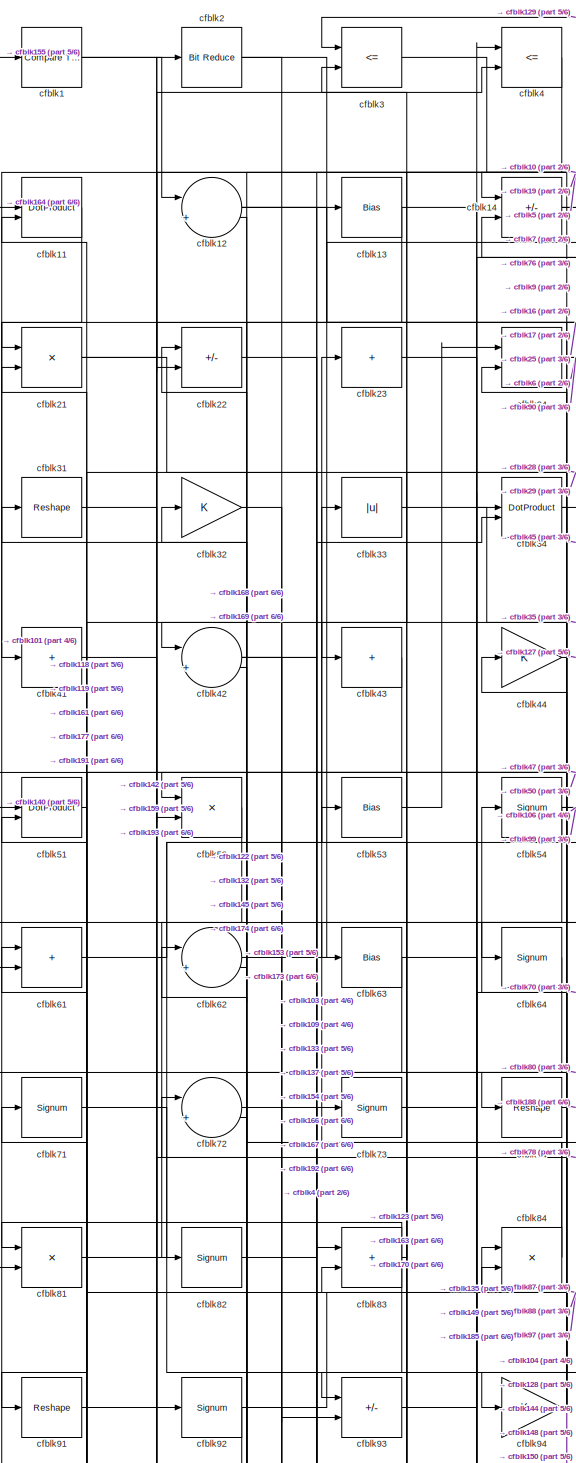
[diagram: root canvas - part 1/6, top left region]
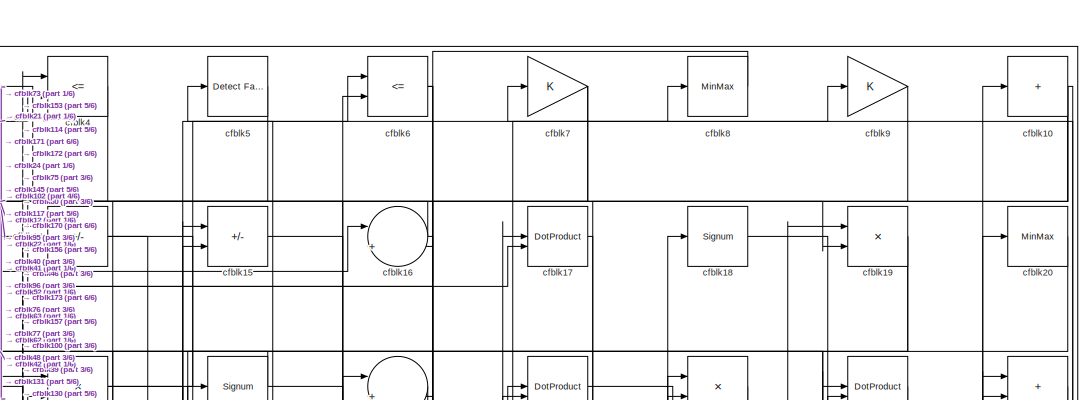
[diagram: root canvas - part 2/6, top center region]
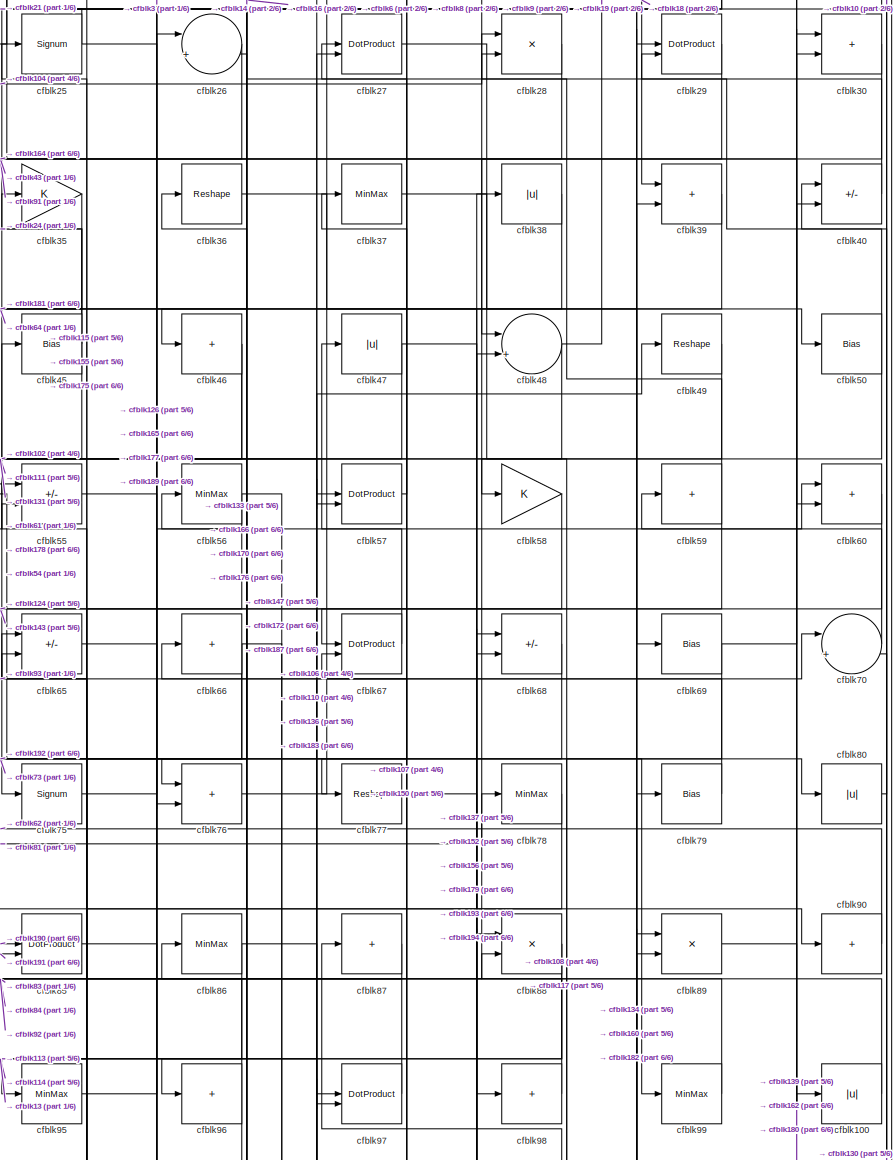
[diagram: root canvas - part 3/6, top right region]
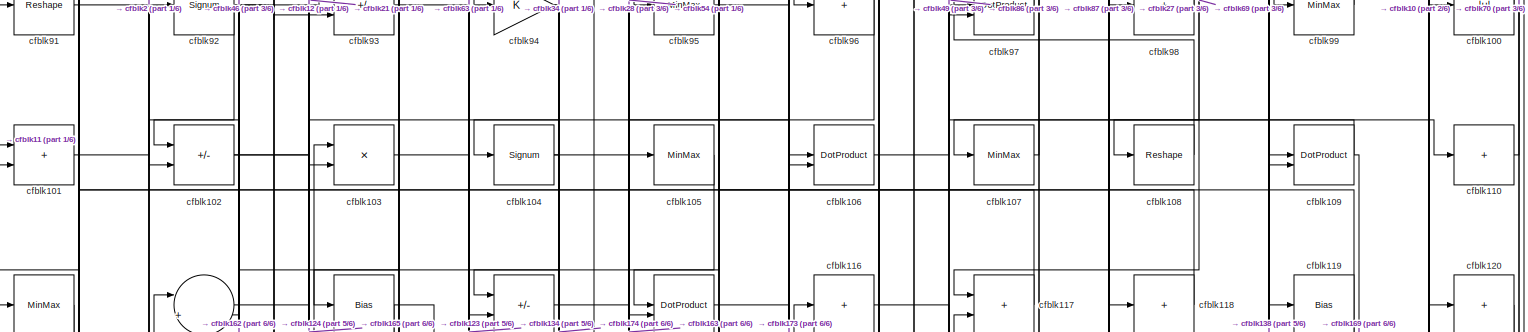
[diagram: root canvas - part 4/6, full width, middle band]
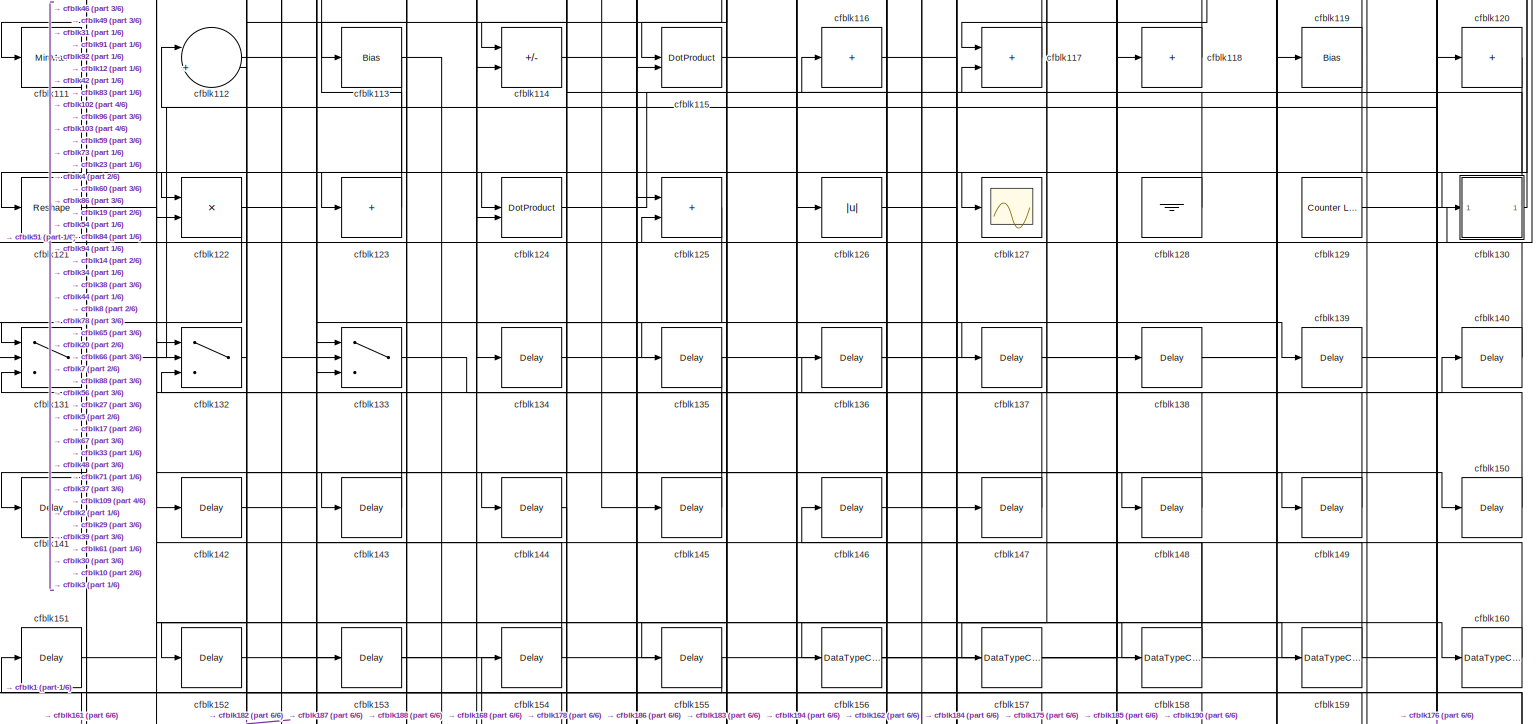
[diagram: root canvas - part 5/6, full width, bottom band]
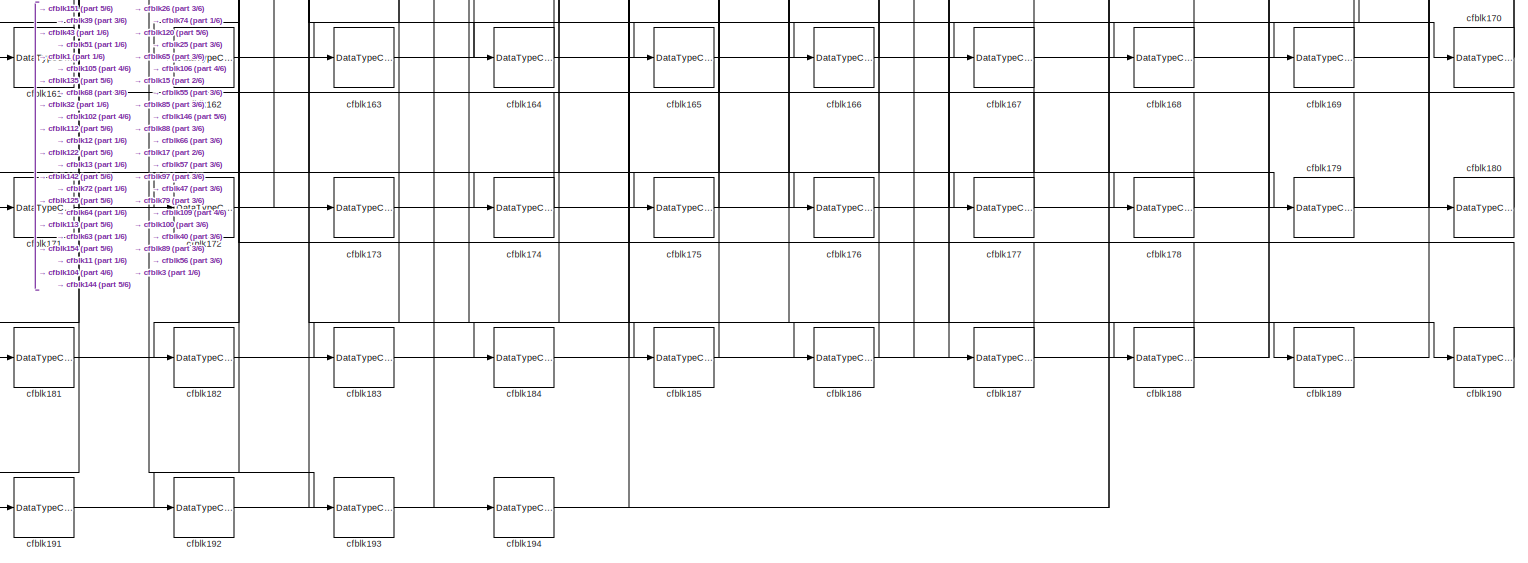
[diagram: root canvas - part 6/6, full width, bottom band]
MODEL slx_450418cd681a
KIND model
CONFIG AbsTol = auto
CONFIG EnableMultiTasking = off
CONFIG FixedStep = auto
CONFIG MaxStep = auto
CONFIG MinStep = auto
CONFIG RelTol = 1e-3
CONFIG SampleTimeConstraint = Unconstrained
CONFIG SolverName = VariableStepAuto
CONFIG StartTime = 0.0
CONFIG StopTime = 10.0
BLOCK [Reference] cfblk1  REF=hdlsllib/Logic and Bit
Operations/Compare
To Constant
  SourceBlock = hdlsllib/Logic and Bit\nOperations/Compare\nTo Constant
  SourceType = Compare To Constant
BLOCK [Sum] cfblk10
  IconShape = rectangular
  Inputs = +
BLOCK [Abs] cfblk100
  SaturateOnIntegerOverflow = off
BLOCK [Sum] cfblk101
  IconShape = rectangular
BLOCK [Sum] cfblk102
  IconShape = rectangular
  Inputs = +-
BLOCK [Product] cfblk103
  Inputs = */
  RndMeth = Zero
  SaturateOnIntegerOverflow = on
BLOCK [Signum] cfblk104
BLOCK [MinMax] cfblk105
BLOCK [DotProduct] cfblk106
  OutDataTypeStr = Inherit: Inherit via internal rule
BLOCK [MinMax] cfblk107
BLOCK [Reshape] cfblk108
BLOCK [DotProduct] cfblk109
  OutDataTypeStr = Inherit: Inherit via internal rule
BLOCK [DotProduct] cfblk11
  OutDataTypeStr = Inherit: Inherit via internal rule
BLOCK [Sum] cfblk110
  IconShape = rectangular
  Inputs = +
BLOCK [MinMax] cfblk111
BLOCK [Sum] cfblk112
  Inputs = |++
BLOCK [Bias] cfblk113
  Bias = 0.0
  SaturateOnIntegerOverflow = off
BLOCK [Sum] cfblk114
  IconShape = rectangular
  Inputs = +-
BLOCK [DotProduct] cfblk115
  OutDataTypeStr = Inherit: Inherit via internal rule
BLOCK [Sum] cfblk116
  IconShape = rectangular
  Inputs = +
BLOCK [Sum] cfblk117
  IconShape = rectangular
BLOCK [Sum] cfblk118
  IconShape = rectangular
  Inputs = +
BLOCK [Bias] cfblk119
  Bias = 0.0
  SaturateOnIntegerOverflow = off
BLOCK [Sum] cfblk12
  Inputs = |++
BLOCK [Sum] cfblk120
  IconShape = rectangular
  Inputs = +
BLOCK [Reshape] cfblk121
BLOCK [Product] cfblk122
  Inputs = */
  RndMeth = Zero
  SaturateOnIntegerOverflow = on
BLOCK [Sum] cfblk123
  IconShape = rectangular
  Inputs = +
BLOCK [DotProduct] cfblk124
  OutDataTypeStr = Inherit: Inherit via internal rule
BLOCK [Sum] cfblk125
  IconShape = rectangular
BLOCK [Abs] cfblk126
  SaturateOnIntegerOverflow = off
BLOCK [Scope] cfblk127
  Floating = off
  NumInputPorts = 1
  ScopeSpecificationString = Simulink.scopes.TimeScopeBlockCfg('CurrentConfiguration', extmgr.ConfigurationSet(extmgr.Configuration('Core','General UI',true),extmgr.Configuration('Core','Source UI',true),extmgr.Configuration('Sources','WiredSimulink',true,'DataLoggingVariableName','ScopeData2','DataLoggingSaveFormat','Array','DataLoggingLimitDataPoints',true,'DataLoggingDecimation','1'),extmgr.Configuration('Visuals','Time Do...<+868ch>
BLOCK [Ground] cfblk128
BLOCK [Reference] cfblk129  REF=hdlsllib/Sources/Counter
Limited
  SourceBlock = hdlsllib/Sources/Counter\nLimited
  SourceType = Counter Limited
BLOCK [Bias] cfblk13
  Bias = 0.0
  SaturateOnIntegerOverflow = off
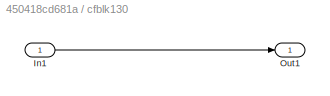
BLOCK [SubSystem] cfblk130
  LibrarySourceBlock = hdlsllib/Ports &\nSubsystems/Subsystem
BLOCK [Inport] cfblk130/In1
BLOCK [Outport] cfblk130/Out1
BLOCK [Switch] cfblk131
  InputSameDT = off
  SaturateOnIntegerOverflow = off
BLOCK [Switch] cfblk132
  InputSameDT = off
  SaturateOnIntegerOverflow = off
BLOCK [Switch] cfblk133
  InputSameDT = off
  SaturateOnIntegerOverflow = off
BLOCK [Delay] cfblk134
  InputPortMap = u0
  SampleTime = 1
BLOCK [Delay] cfblk135
  InputPortMap = u0
  SampleTime = 1
BLOCK [Delay] cfblk136
  InputPortMap = u0
  SampleTime = 1
BLOCK [Delay] cfblk137
  InputPortMap = u0
  SampleTime = 1
BLOCK [Delay] cfblk138
  InputPortMap = u0
  SampleTime = 1
BLOCK [Delay] cfblk139
  InputPortMap = u0
  SampleTime = 1
BLOCK [Sum] cfblk14
  IconShape = rectangular
  Inputs = +-
BLOCK [Delay] cfblk140
  InputPortMap = u0
  SampleTime = 1
BLOCK [Delay] cfblk141
  InputPortMap = u0
  SampleTime = 1
BLOCK [Delay] cfblk142
  InputPortMap = u0
  SampleTime = 1
BLOCK [Delay] cfblk143
  InputPortMap = u0
  SampleTime = 1
BLOCK [Delay] cfblk144
  InputPortMap = u0
  SampleTime = 1
BLOCK [Delay] cfblk145
  InputPortMap = u0
  SampleTime = 1
BLOCK [Delay] cfblk146
  InputPortMap = u0
  SampleTime = 1
BLOCK [Delay] cfblk147
  InputPortMap = u0
  SampleTime = 1
BLOCK [Delay] cfblk148
  InputPortMap = u0
  SampleTime = 1
BLOCK [Delay] cfblk149
  InputPortMap = u0
  SampleTime = 1
BLOCK [Sum] cfblk15
  IconShape = rectangular
  Inputs = +-
BLOCK [Delay] cfblk150
  InputPortMap = u0
  SampleTime = 1
BLOCK [Delay] cfblk151
  InputPortMap = u0
  SampleTime = 1
BLOCK [Delay] cfblk152
  InputPortMap = u0
  SampleTime = 1
BLOCK [Delay] cfblk153
  InputPortMap = u0
  SampleTime = 1
BLOCK [Delay] cfblk154
  InputPortMap = u0
  SampleTime = 1
BLOCK [Delay] cfblk155
  InputPortMap = u0
  SampleTime = 1
BLOCK [DataTypeConversion] cfblk156
  RndMeth = Floor
  SaturateOnIntegerOverflow = off
BLOCK [DataTypeConversion] cfblk157
  OutDataTypeStr = uint8
  RndMeth = Floor
  SaturateOnIntegerOverflow = off
BLOCK [DataTypeConversion] cfblk158
  RndMeth = Floor
  SaturateOnIntegerOverflow = off
BLOCK [DataTypeConversion] cfblk159
  OutDataTypeStr = uint8
  RndMeth = Floor
  SaturateOnIntegerOverflow = off
BLOCK [Sum] cfblk16
  Inputs = |++
BLOCK [DataTypeConversion] cfblk160
  OutDataTypeStr = uint8
  RndMeth = Floor
  SaturateOnIntegerOverflow = off
BLOCK [DataTypeConversion] cfblk161
  OutDataTypeStr = uint8
  RndMeth = Floor
  SaturateOnIntegerOverflow = off
BLOCK [DataTypeConversion] cfblk162
  RndMeth = Floor
  SaturateOnIntegerOverflow = off
BLOCK [DataTypeConversion] cfblk163
  OutDataTypeStr = uint8
  RndMeth = Floor
  SaturateOnIntegerOverflow = off
BLOCK [DataTypeConversion] cfblk164
  OutDataTypeStr = uint8
  RndMeth = Floor
  SaturateOnIntegerOverflow = off
BLOCK [DataTypeConversion] cfblk165
  OutDataTypeStr = uint8
  RndMeth = Floor
  SaturateOnIntegerOverflow = off
BLOCK [DataTypeConversion] cfblk166
  OutDataTypeStr = uint8
  RndMeth = Floor
  SaturateOnIntegerOverflow = off
BLOCK [DataTypeConversion] cfblk167
  RndMeth = Floor
  SaturateOnIntegerOverflow = off
BLOCK [DataTypeConversion] cfblk168
  OutDataTypeStr = uint8
  RndMeth = Floor
  SaturateOnIntegerOverflow = off
BLOCK [DataTypeConversion] cfblk169
  OutDataTypeStr = uint8
  RndMeth = Floor
  SaturateOnIntegerOverflow = off
BLOCK [DotProduct] cfblk17
  OutDataTypeStr = Inherit: Inherit via internal rule
BLOCK [DataTypeConversion] cfblk170
  RndMeth = Floor
  SaturateOnIntegerOverflow = off
BLOCK [DataTypeConversion] cfblk171
  OutDataTypeStr = uint8
  RndMeth = Floor
  SaturateOnIntegerOverflow = off
BLOCK [DataTypeConversion] cfblk172
  OutDataTypeStr = uint8
  RndMeth = Floor
  SaturateOnIntegerOverflow = off
BLOCK [DataTypeConversion] cfblk173
  RndMeth = Floor
  SaturateOnIntegerOverflow = off
BLOCK [DataTypeConversion] cfblk174
  OutDataTypeStr = uint8
  RndMeth = Floor
  SaturateOnIntegerOverflow = off
BLOCK [DataTypeConversion] cfblk175
  RndMeth = Floor
  SaturateOnIntegerOverflow = off
BLOCK [DataTypeConversion] cfblk176
  OutDataTypeStr = uint8
  RndMeth = Floor
  SaturateOnIntegerOverflow = off
BLOCK [DataTypeConversion] cfblk177
  OutDataTypeStr = uint8
  RndMeth = Floor
  SaturateOnIntegerOverflow = off
BLOCK [DataTypeConversion] cfblk178
  OutDataTypeStr = uint8
  RndMeth = Floor
  SaturateOnIntegerOverflow = off
BLOCK [DataTypeConversion] cfblk179
  OutDataTypeStr = uint8
  RndMeth = Floor
  SaturateOnIntegerOverflow = off
BLOCK [Signum] cfblk18
BLOCK [DataTypeConversion] cfblk180
  OutDataTypeStr = uint8
  RndMeth = Floor
  SaturateOnIntegerOverflow = off
BLOCK [DataTypeConversion] cfblk181
  OutDataTypeStr = uint8
  RndMeth = Floor
  SaturateOnIntegerOverflow = off
BLOCK [DataTypeConversion] cfblk182
  OutDataTypeStr = uint8
  RndMeth = Floor
  SaturateOnIntegerOverflow = off
BLOCK [DataTypeConversion] cfblk183
  OutDataTypeStr = uint8
  RndMeth = Floor
  SaturateOnIntegerOverflow = off
BLOCK [DataTypeConversion] cfblk184
  OutDataTypeStr = uint8
  RndMeth = Floor
  SaturateOnIntegerOverflow = off
BLOCK [DataTypeConversion] cfblk185
  OutDataTypeStr = uint8
  RndMeth = Floor
  SaturateOnIntegerOverflow = off
BLOCK [DataTypeConversion] cfblk186
  OutDataTypeStr = uint8
  RndMeth = Floor
  SaturateOnIntegerOverflow = off
BLOCK [DataTypeConversion] cfblk187
  OutDataTypeStr = uint8
  RndMeth = Floor
  SaturateOnIntegerOverflow = off
BLOCK [DataTypeConversion] cfblk188
  OutDataTypeStr = uint8
  RndMeth = Floor
  SaturateOnIntegerOverflow = off
BLOCK [DataTypeConversion] cfblk189
  OutDataTypeStr = uint8
  RndMeth = Floor
  SaturateOnIntegerOverflow = off
BLOCK [Product] cfblk19
  Inputs = */
  RndMeth = Zero
  SaturateOnIntegerOverflow = on
BLOCK [DataTypeConversion] cfblk190
  OutDataTypeStr = uint8
  RndMeth = Floor
  SaturateOnIntegerOverflow = off
BLOCK [DataTypeConversion] cfblk191
  OutDataTypeStr = uint8
  RndMeth = Floor
  SaturateOnIntegerOverflow = off
BLOCK [DataTypeConversion] cfblk192
  OutDataTypeStr = uint8
  RndMeth = Floor
  SaturateOnIntegerOverflow = off
BLOCK [DataTypeConversion] cfblk193
  OutDataTypeStr = uint8
  RndMeth = Floor
  SaturateOnIntegerOverflow = off
BLOCK [DataTypeConversion] cfblk194
  OutDataTypeStr = uint8
  RndMeth = Floor
  SaturateOnIntegerOverflow = off
BLOCK [Reference] cfblk2  REF=hdlsllib/Logic and Bit
Operations/Bit Reduce
  SourceBlock = hdlsllib/Logic and Bit\nOperations/Bit Reduce
  SourceType = Bit Reduce
BLOCK [MinMax] cfblk20
BLOCK [Product] cfblk21
  Inputs = */
  RndMeth = Zero
  SaturateOnIntegerOverflow = on
BLOCK [Sum] cfblk22
  IconShape = rectangular
  Inputs = +-
BLOCK [Sum] cfblk23
  IconShape = rectangular
  Inputs = +
BLOCK [Product] cfblk24
  Inputs = */
  RndMeth = Zero
  SaturateOnIntegerOverflow = on
BLOCK [Signum] cfblk25
BLOCK [Sum] cfblk26
  Inputs = |++
BLOCK [DotProduct] cfblk27
  OutDataTypeStr = Inherit: Inherit via internal rule
BLOCK [Product] cfblk28
  Inputs = */
  RndMeth = Zero
  SaturateOnIntegerOverflow = on
BLOCK [DotProduct] cfblk29
  OutDataTypeStr = Inherit: Inherit via internal rule
BLOCK [RelationalOperator] cfblk3
  InputSameDT = off
  Operator = <=
  OutDataTypeStr = boolean
BLOCK [Sum] cfblk30
  IconShape = rectangular
BLOCK [Reshape] cfblk31
BLOCK [Gain] cfblk32
BLOCK [Abs] cfblk33
  SaturateOnIntegerOverflow = off
BLOCK [DotProduct] cfblk34
  OutDataTypeStr = Inherit: Inherit via internal rule
BLOCK [Gain] cfblk35
BLOCK [Reshape] cfblk36
BLOCK [MinMax] cfblk37
BLOCK [Abs] cfblk38
  SaturateOnIntegerOverflow = off
BLOCK [Sum] cfblk39
  IconShape = rectangular
BLOCK [RelationalOperator] cfblk4
  InputSameDT = off
  Operator = <=
  OutDataTypeStr = boolean
BLOCK [Sum] cfblk40
  IconShape = rectangular
  Inputs = +-
BLOCK [Sum] cfblk41
  IconShape = rectangular
  Inputs = +
BLOCK [Sum] cfblk42
  Inputs = |++
BLOCK [Sum] cfblk43
  IconShape = rectangular
  Inputs = +
BLOCK [Gain] cfblk44
BLOCK [Bias] cfblk45
  Bias = 0.0
  SaturateOnIntegerOverflow = off
BLOCK [Sum] cfblk46
  IconShape = rectangular
  Inputs = +
BLOCK [Abs] cfblk47
  SaturateOnIntegerOverflow = off
BLOCK [Sum] cfblk48
  Inputs = |++
BLOCK [Reshape] cfblk49
BLOCK [Reference] cfblk5  REF=hdlsllib/Logic and Bit
Operations/Detect Fall
Negative
  SourceBlock = hdlsllib/Logic and Bit\nOperations/Detect Fall\nNegative
  SourceType = Detect Fall Negative
BLOCK [Bias] cfblk50
  Bias = 0.0
  SaturateOnIntegerOverflow = off
BLOCK [DotProduct] cfblk51
  OutDataTypeStr = Inherit: Inherit via internal rule
BLOCK [Product] cfblk52
  Inputs = */
  RndMeth = Zero
  SaturateOnIntegerOverflow = on
BLOCK [Bias] cfblk53
  Bias = 0.0
  SaturateOnIntegerOverflow = off
BLOCK [Signum] cfblk54
BLOCK [Sum] cfblk55
  IconShape = rectangular
  Inputs = +-
BLOCK [MinMax] cfblk56
BLOCK [DotProduct] cfblk57
  OutDataTypeStr = Inherit: Inherit via internal rule
BLOCK [Gain] cfblk58
BLOCK [Sum] cfblk59
  IconShape = rectangular
  Inputs = +
BLOCK [RelationalOperator] cfblk6
  InputSameDT = off
  Operator = <=
  OutDataTypeStr = boolean
BLOCK [Sum] cfblk60
  IconShape = rectangular
BLOCK [Sum] cfblk61
  IconShape = rectangular
BLOCK [Sum] cfblk62
  Inputs = |++
BLOCK [Bias] cfblk63
  Bias = 0.0
  SaturateOnIntegerOverflow = off
BLOCK [Signum] cfblk64
BLOCK [Sum] cfblk65
  IconShape = rectangular
  Inputs = +-
BLOCK [Sum] cfblk66
  IconShape = rectangular
  Inputs = +
BLOCK [DotProduct] cfblk67
  OutDataTypeStr = Inherit: Inherit via internal rule
BLOCK [Sum] cfblk68
  IconShape = rectangular
  Inputs = +-
BLOCK [Bias] cfblk69
  Bias = 0.0
  SaturateOnIntegerOverflow = off
BLOCK [Gain] cfblk7
BLOCK [Sum] cfblk70
  Inputs = |++
BLOCK [Signum] cfblk71
BLOCK [Sum] cfblk72
  Inputs = |++
BLOCK [Signum] cfblk73
BLOCK [Reshape] cfblk74
BLOCK [Signum] cfblk75
BLOCK [Sum] cfblk76
  IconShape = rectangular
BLOCK [Reshape] cfblk77
BLOCK [MinMax] cfblk78
BLOCK [Bias] cfblk79
  Bias = 0.0
  SaturateOnIntegerOverflow = off
BLOCK [MinMax] cfblk8
BLOCK [Abs] cfblk80
  SaturateOnIntegerOverflow = off
BLOCK [Product] cfblk81
  Inputs = */
  RndMeth = Zero
  SaturateOnIntegerOverflow = on
BLOCK [Signum] cfblk82
BLOCK [Sum] cfblk83
  IconShape = rectangular
BLOCK [Product] cfblk84
  Inputs = */
  RndMeth = Zero
  SaturateOnIntegerOverflow = on
BLOCK [DotProduct] cfblk85
  OutDataTypeStr = Inherit: Inherit via internal rule
BLOCK [MinMax] cfblk86
BLOCK [Sum] cfblk87
  IconShape = rectangular
  Inputs = +
BLOCK [Product] cfblk88
  Inputs = */
  RndMeth = Zero
  SaturateOnIntegerOverflow = on
BLOCK [Product] cfblk89
  Inputs = */
  RndMeth = Zero
  SaturateOnIntegerOverflow = on
BLOCK [Gain] cfblk9
BLOCK [Sum] cfblk90
  IconShape = rectangular
  Inputs = +
BLOCK [Reshape] cfblk91
BLOCK [Signum] cfblk92
BLOCK [Sum] cfblk93
  IconShape = rectangular
  Inputs = +-
BLOCK [Gain] cfblk94
BLOCK [MinMax] cfblk95
BLOCK [Sum] cfblk96
  IconShape = rectangular
  Inputs = +
BLOCK [DotProduct] cfblk97
  OutDataTypeStr = Inherit: Inherit via internal rule
BLOCK [Sum] cfblk98
  IconShape = rectangular
  Inputs = +
BLOCK [MinMax] cfblk99
LINE cfblk100:1 -> cfblk18:1
LINE cfblk101:1 -> cfblk2:1
NET cfblk102:1 -> cfblk124:1, cfblk165:1
LINE cfblk103:1 -> cfblk134:1
NET cfblk104:1 -> cfblk174:1, cfblk28:2
LINE cfblk105:1 -> cfblk162:1
LINE cfblk106:1 -> cfblk49:1
LINE cfblk107:1 -> cfblk27:1
LINE cfblk108:1 -> cfblk87:1
NET cfblk109:1 -> cfblk107:1, cfblk169:1
NET cfblk10:1 -> cfblk102:2, cfblk130:1, cfblk63:1, cfblk77:1
LINE cfblk110:1 -> cfblk70:2
LINE cfblk111:1 -> cfblk121:1
LINE cfblk112:1 -> cfblk186:1
NET cfblk113:1 -> cfblk152:1, cfblk194:1
LINE cfblk114:1 -> cfblk8:1
LINE cfblk115:1 -> cfblk139:1
LINE cfblk116:1 -> cfblk158:1
LINE cfblk117:1 -> cfblk5:1
LINE cfblk118:1 -> cfblk71:1
NET cfblk119:1 -> cfblk141:1, cfblk61:1
LINE cfblk11:1 -> cfblk101:1
LINE cfblk120:1 -> cfblk175:1
LINE cfblk121:1 -> cfblk148:1
NET cfblk122:1 -> cfblk131:2, cfblk168:1
LINE cfblk123:1 -> cfblk103:1
LINE cfblk124:1 -> cfblk117:2
LINE cfblk125:1 -> cfblk183:1
LINE cfblk126:1 -> cfblk149:1
LINE cfblk128:1 -> cfblk54:1
LINE cfblk129:1 -> cfblk3:1
NET cfblk12:1 -> cfblk109:1, cfblk166:1, cfblk19:2
LINE cfblk130/In1:1 -> cfblk130/Out1:1
NET cfblk130:1 -> cfblk66:1, cfblk7:1
LINE cfblk131:1 -> cfblk10:1
LINE cfblk132:1 -> cfblk42:2
LINE cfblk133:1 -> cfblk140:1
LINE cfblk134:1 -> cfblk39:2
LINE cfblk135:1 -> cfblk182:1
LINE cfblk136:1 -> cfblk27:2
LINE cfblk137:1 -> cfblk88:1
LINE cfblk138:1 -> cfblk109:2
LINE cfblk139:1 -> cfblk30:1
NET cfblk13:1 -> cfblk52:2, cfblk97:2
LINE cfblk140:1 -> cfblk51:1
LINE cfblk141:1 -> cfblk131:3
LINE cfblk142:1 -> cfblk178:1
LINE cfblk143:1 -> cfblk132:3
LINE cfblk144:1 -> cfblk184:1
LINE cfblk145:1 -> cfblk12:2
LINE cfblk146:1 -> cfblk190:1
LINE cfblk147:1 -> cfblk132:1
LINE cfblk148:1 -> cfblk84:2
LINE cfblk149:1 -> cfblk34:1
NET cfblk14:1 -> cfblk145:1, cfblk60:2
LINE cfblk150:1 -> cfblk67:2
LINE cfblk151:1 -> cfblk160:1
LINE cfblk152:1 -> cfblk48:2
LINE cfblk153:1 -> cfblk4:1
LINE cfblk154:1 -> cfblk83:1
LINE cfblk155:1 -> cfblk1:1
NET cfblk156:1 -> cfblk138:1, cfblk38:1
LINE cfblk157:1 -> cfblk20:1
NET cfblk158:1 -> cfblk132:2, cfblk136:1
LINE cfblk159:1 -> cfblk116:1
LINE cfblk15:1 -> cfblk170:1
LINE cfblk160:1 -> cfblk29:1
LINE cfblk161:1 -> cfblk151:1
NET cfblk162:1 -> cfblk154:1, cfblk40:2
LINE cfblk163:1 -> cfblk105:1
LINE cfblk164:1 -> cfblk11:1
LINE cfblk165:1 -> cfblk26:1
LINE cfblk166:1 -> cfblk26:2
NET cfblk167:1 -> cfblk11:2, cfblk171:1
LINE cfblk168:1 -> cfblk72:1
LINE cfblk169:1 -> cfblk72:2
NET cfblk16:1 -> cfblk14:1, cfblk96:1
NET cfblk170:1 -> cfblk3:2, cfblk56:1
LINE cfblk171:1 -> cfblk15:1
LINE cfblk172:1 -> cfblk15:2
NET cfblk173:1 -> cfblk106:1, cfblk17:1
LINE cfblk174:1 -> cfblk32:1
NET cfblk175:1 -> cfblk65:2, cfblk79:1, cfblk97:1
LINE cfblk176:1 -> cfblk120:1
LINE cfblk177:1 -> cfblk51:2
LINE cfblk178:1 -> cfblk55:1
LINE cfblk179:1 -> cfblk55:2
LINE cfblk17:1 -> cfblk157:1
LINE cfblk180:1 -> cfblk25:1
LINE cfblk181:1 -> cfblk89:1
LINE cfblk182:1 -> cfblk89:2
LINE cfblk183:1 -> cfblk57:1
LINE cfblk184:1 -> cfblk125:1
LINE cfblk185:1 -> cfblk125:2
LINE cfblk186:1 -> cfblk146:1
LINE cfblk187:1 -> cfblk112:1
LINE cfblk188:1 -> cfblk112:2
LINE cfblk189:1 -> cfblk100:1
LINE cfblk18:1 -> cfblk39:1
LINE cfblk190:1 -> cfblk85:1
LINE cfblk191:1 -> cfblk85:2
LINE cfblk192:1 -> cfblk13:1
LINE cfblk193:1 -> cfblk68:1
LINE cfblk194:1 -> cfblk68:2
NET cfblk19:1 -> cfblk114:1, cfblk42:1
NET cfblk1:1 -> cfblk12:1, cfblk193:1
LINE cfblk20:1 -> cfblk156:1
NET cfblk21:1 -> cfblk103:2, cfblk4:2
LINE cfblk22:1 -> cfblk74:1
LINE cfblk23:1 -> cfblk135:1
NET cfblk24:1 -> cfblk6:1, cfblk90:1
NET cfblk25:1 -> cfblk21:1, cfblk57:2
LINE cfblk26:1 -> cfblk164:1
LINE cfblk27:1 -> cfblk69:1
LINE cfblk28:1 -> cfblk91:1
LINE cfblk29:1 -> cfblk43:1
NET cfblk2:1 -> cfblk119:1, cfblk93:2
LINE cfblk30:1 -> cfblk48:1
LINE cfblk31:1 -> cfblk159:1
LINE cfblk32:1 -> cfblk173:1
LINE cfblk33:1 -> cfblk118:1
NET cfblk34:1 -> cfblk104:1, cfblk150:1
LINE cfblk35:1 -> cfblk64:1
LINE cfblk36:1 -> cfblk50:1
LINE cfblk37:1 -> cfblk117:1
LINE cfblk38:1 -> cfblk115:2
LINE cfblk39:1 -> cfblk181:1
LINE cfblk3:1 -> cfblk76:2
LINE cfblk40:1 -> cfblk14:2
LINE cfblk41:1 -> cfblk92:1
NET cfblk42:1 -> cfblk133:2, cfblk137:1, cfblk22:1, cfblk34:2
LINE cfblk43:1 -> cfblk161:1
LINE cfblk44:1 -> cfblk127:1
NET cfblk45:1 -> cfblk24:2, cfblk35:1, cfblk61:2
NET cfblk46:1 -> cfblk102:1, cfblk111:1
NET cfblk47:1 -> cfblk179:1, cfblk62:2
NET cfblk48:1 -> cfblk19:1, cfblk58:1
LINE cfblk49:1 -> cfblk131:1
LINE cfblk4:1 -> cfblk41:1
NET cfblk50:1 -> cfblk29:2, cfblk93:1
LINE cfblk51:1 -> cfblk191:1
LINE cfblk52:1 -> cfblk82:1
LINE cfblk53:1 -> cfblk24:1
NET cfblk54:1 -> cfblk106:2, cfblk81:2, cfblk99:1
LINE cfblk55:1 -> cfblk177:1
NET cfblk56:1 -> cfblk115:1, cfblk147:1
LINE cfblk57:1 -> cfblk37:1
LINE cfblk58:1 -> cfblk67:1
NET cfblk59:1 -> cfblk143:1, cfblk28:1
LINE cfblk5:1 -> cfblk94:1
LINE cfblk60:1 -> cfblk124:2
LINE cfblk61:1 -> cfblk33:1
LINE cfblk62:1 -> cfblk16:1
NET cfblk63:1 -> cfblk101:2, cfblk185:1
LINE cfblk64:1 -> cfblk163:1
LINE cfblk65:1 -> cfblk126:1
NET cfblk66:1 -> cfblk172:1, cfblk187:1, cfblk95:1
LINE cfblk67:1 -> cfblk47:1
LINE cfblk68:1 -> cfblk192:1
NET cfblk69:1 -> cfblk108:1, cfblk30:2
NET cfblk6:1 -> cfblk46:1, cfblk76:1
LINE cfblk70:1 -> cfblk59:1
LINE cfblk71:1 -> cfblk133:1
LINE cfblk72:1 -> cfblk167:1
NET cfblk73:1 -> cfblk123:1, cfblk17:2, cfblk80:1
LINE cfblk74:1 -> cfblk188:1
LINE cfblk75:1 -> cfblk60:1
LINE cfblk76:1 -> cfblk9:1
LINE cfblk77:1 -> cfblk98:1
LINE cfblk78:1 -> cfblk155:1
LINE cfblk79:1 -> cfblk36:1
NET cfblk7:1 -> cfblk16:2, cfblk22:2
LINE cfblk80:1 -> cfblk40:1
NET cfblk81:1 -> cfblk45:1, cfblk78:1
LINE cfblk82:1 -> cfblk73:1
NET cfblk83:1 -> cfblk122:1, cfblk53:1, cfblk81:1
NET cfblk84:1 -> cfblk23:1, cfblk31:1
LINE cfblk85:1 -> cfblk189:1
NET cfblk86:1 -> cfblk110:1, cfblk114:2
LINE cfblk87:1 -> cfblk83:2
NET cfblk88:1 -> cfblk113:1, cfblk176:1
LINE cfblk89:1 -> cfblk180:1
LINE cfblk8:1 -> cfblk75:1
LINE cfblk90:1 -> cfblk62:1
LINE cfblk91:1 -> cfblk142:1
NET cfblk92:1 -> cfblk122:2, cfblk153:1, cfblk88:2
LINE cfblk93:1 -> cfblk70:1
NET cfblk94:1 -> cfblk144:1, cfblk44:1
LINE cfblk95:1 -> cfblk6:2
NET cfblk96:1 -> cfblk133:3, cfblk86:1
LINE cfblk97:1 -> cfblk84:1
LINE cfblk98:1 -> cfblk65:1
LINE cfblk99:1 -> cfblk21:2
LINE cfblk9:1 -> cfblk52:1
note: NET lines group one-source signal fan-out (src -> all destinations, sorted); 1:1 wires keep LINE
